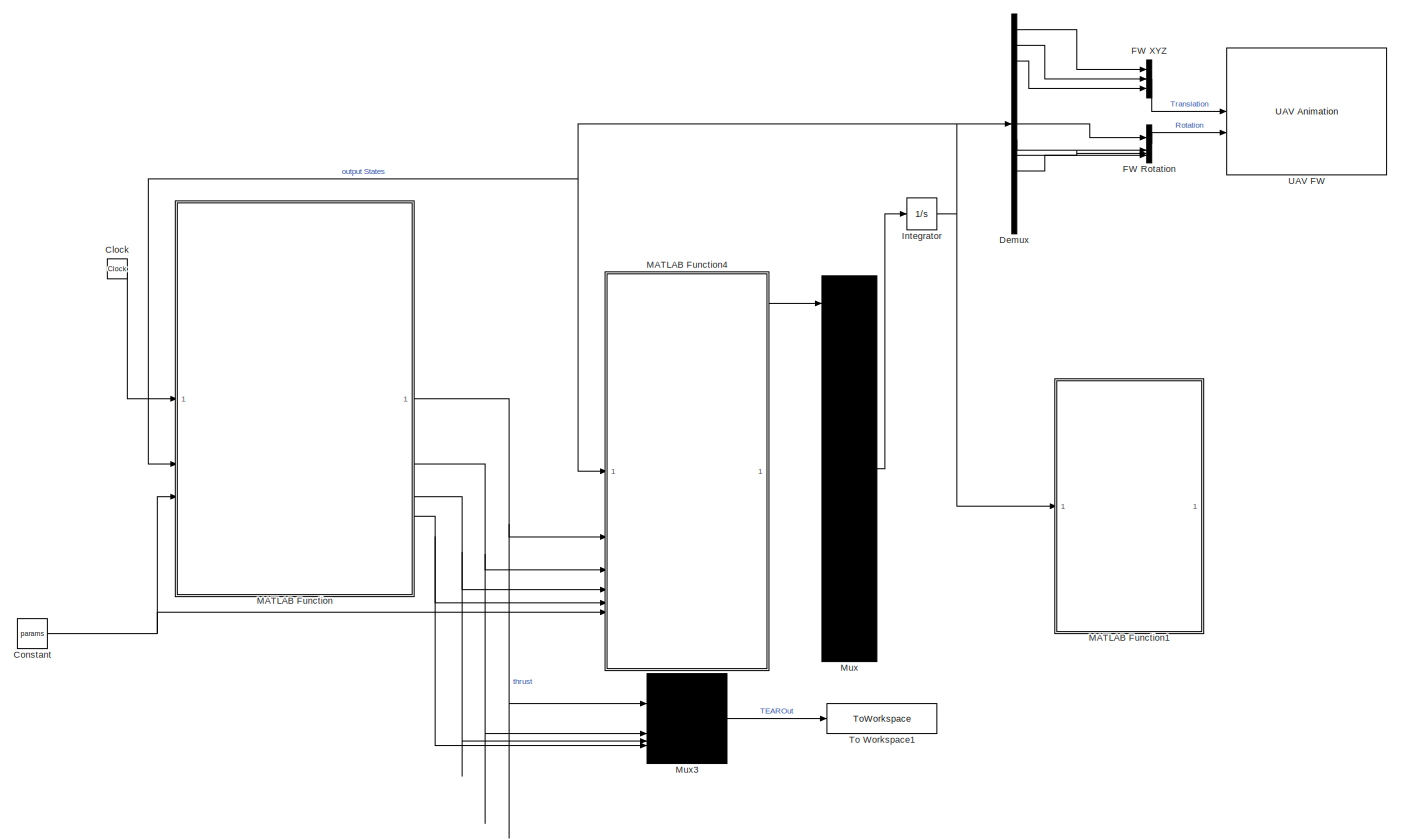
[diagram: root canvas - part 1/1, most of the canvas]
MODEL slx_4d171bb0af04
KIND model
CONFIG AbsTol = auto
CONFIG EnableMultiTasking = off
CONFIG FixedStep = 0.001
CONFIG MaxStep = auto
CONFIG MinStep = auto
CONFIG RelTol = 1e-3
CONFIG SampleTimeConstraint = Unconstrained
CONFIG SolverName = ode1
CONFIG StartTime = 0.0
CONFIG StopTime = 20
BLOCK [Clock] Clock
  Decimation = 1
  DisplayTime = on
BLOCK [Constant] Constant
  OutDataTypeStr = Bus: paramsBus
  Value = params
BLOCK [Demux] Demux
  Outputs = 13
BLOCK [Mux] FW Rotation
  DisplayOption = bar
BLOCK [Mux] FW XYZ
  DisplayOption = bar
  Inputs = 3
BLOCK [Integrator] Integrator
  InitialCondition = initial_fw_state
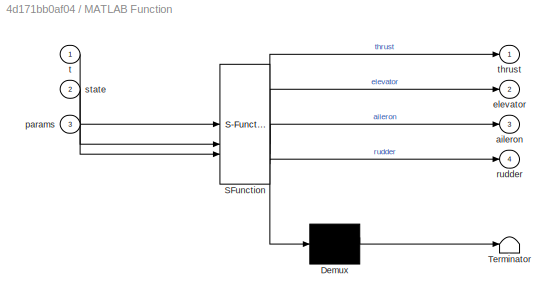
BLOCK [SubSystem] MATLAB Function
  ErrorFcn = Stateflow.Translate.translate
  PermitHierarchicalResolution = ExplicitOnly
  SFBlockType = MATLAB Function
  TreatAsAtomicUnit = on
BLOCK [Demux] MATLAB Function/ Demux 
  Outputs = 1
BLOCK [S-Function] MATLAB Function/ SFunction 
  EnableBusSupport = on
  FunctionName = sf_sfun
  PortCounts = [3 5]
  SFcnIsStateOwnerBlock = off
  SFunctionDeploymentMode = off
  Tag = Stateflow S-Function 7
BLOCK [Terminator] MATLAB Function/ Terminator 
BLOCK [Outport] MATLAB Function/aileron
  Port = 3
BLOCK [Outport] MATLAB Function/elevator
  Port = 2
BLOCK [Inport] MATLAB Function/params
  Port = 3
BLOCK [Outport] MATLAB Function/rudder
  Port = 4
BLOCK [Inport] MATLAB Function/state
  Port = 2
BLOCK [Inport] MATLAB Function/t
BLOCK [Outport] MATLAB Function/thrust
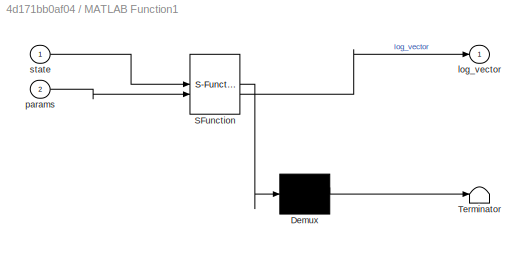
BLOCK [SubSystem] MATLAB Function1
  Commented = on
  ErrorFcn = Stateflow.Translate.translate
  PermitHierarchicalResolution = ExplicitOnly
  SFBlockType = MATLAB Function
  TreatAsAtomicUnit = on
BLOCK [Demux] MATLAB Function1/ Demux 
  Outputs = 1
BLOCK [S-Function] MATLAB Function1/ SFunction 
  EnableBusSupport = on
  FunctionName = sf_sfun
  PortCounts = [2 2]
  SFcnIsStateOwnerBlock = off
  SFunctionDeploymentMode = off
  Tag = Stateflow S-Function 1
BLOCK [Terminator] MATLAB Function1/ Terminator 
BLOCK [Outport] MATLAB Function1/log_vector
BLOCK [Inport] MATLAB Function1/params
  Port = 2
BLOCK [Inport] MATLAB Function1/state
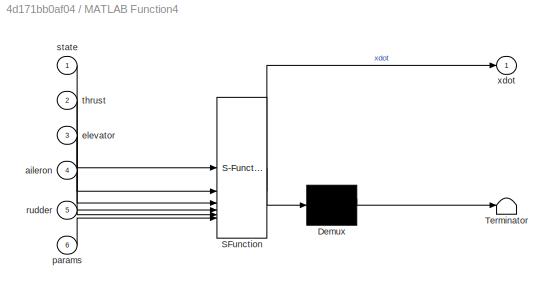
BLOCK [SubSystem] MATLAB Function4
  ErrorFcn = Stateflow.Translate.translate
  PermitHierarchicalResolution = ExplicitOnly
  SFBlockType = MATLAB Function
  TreatAsAtomicUnit = on
BLOCK [Demux] MATLAB Function4/ Demux 
  Outputs = 1
BLOCK [S-Function] MATLAB Function4/ SFunction 
  EnableBusSupport = on
  FunctionName = sf_sfun
  PortCounts = [6 2]
  SFcnIsStateOwnerBlock = off
  SFunctionDeploymentMode = off
  Tag = Stateflow S-Function 6
BLOCK [Terminator] MATLAB Function4/ Terminator 
BLOCK [Inport] MATLAB Function4/aileron
  Port = 4
BLOCK [Inport] MATLAB Function4/elevator
  Port = 3
BLOCK [Inport] MATLAB Function4/params
  Port = 6
BLOCK [Inport] MATLAB Function4/rudder
  Port = 5
BLOCK [Inport] MATLAB Function4/state
BLOCK [Inport] MATLAB Function4/thrust
  Port = 2
BLOCK [Outport] MATLAB Function4/xdot
BLOCK [Mux] Mux
  DisplayOption = signals
  Inputs = 13
BLOCK [Mux] Mux3
  DisplayOption = signals
BLOCK [ToWorkspace] To Workspace1
  FixptAsFi = on
  MaxDataPoints = inf
  SampleTime = -1
  Save2DSignal = 2-D array (concatenate along first dimension)
  SaveFormat = Structure With Time
  VariableName = fixedWingDataTEAR
BLOCK [Reference] UAV FW  REF=uavutilslib/UAV Animation
  SourceBlock = uavutilslib/UAV Animation
  SourceType = uav.sluav.internal.system.UAVAnimation
LINE Clock:1 -> MATLAB Function:1
NET Constant:1 -> MATLAB Function4:6, MATLAB Function:3
LINE Demux:1 -> FW XYZ:1
LINE Demux:10 -> FW Rotation:4
LINE Demux:2 -> FW XYZ:2
LINE Demux:3 -> FW XYZ:3
LINE Demux:7 -> FW Rotation:1
LINE Demux:8 -> FW Rotation:2
LINE Demux:9 -> FW Rotation:3
LINE FW Rotation:1 -> UAV FW:2
LINE FW XYZ:1 -> UAV FW:1
NET Integrator:1 -> Demux:1, MATLAB Function1:1, MATLAB Function4:1, MATLAB Function:2
LINE MATLAB Function4:1 -> Mux:1
NET MATLAB Function:1 -> MATLAB Function4:2, Mux3:1
NET MATLAB Function:2 -> MATLAB Function4:3, Mux3:2
NET MATLAB Function:3 -> MATLAB Function4:4, Mux3:3
NET MATLAB Function:4 -> MATLAB Function4:5, Mux3:4
LINE Mux3:1 -> To Workspace1:1
LINE Mux:1 -> Integrator:1
note: NET lines group one-source signal fan-out (src -> all destinations, sorted); 1:1 wires keep LINE
CHART MATLAB Function1 states=1 transitions=1
  STATE_LABEL 'eML_blk_kernel()'
  STATE_LABEL 'SCRIPT:\nfunction log_vector = fw_log_diagnostics(state, params)\n% Logs diagnostics from aircraft state for debugging purposes\n\n% === Unpack State ===\nu = state(4); v = state(5); w = state(6);\nphi = state(7); theta = state(8); psi = state(9);\n\n% === Aircraft Constants (Fixed-Wing Specific with Prefixes) ===\nrho = params.rho;\nS   = params.fw_S;\nCL0 = params.fw_CL0;\nCL_alpha = params.fw_CL_alpha;\nCD0...<+575ch>'
CHART MATLAB Function4 states=1 transitions=1
  STATE_LABEL 'eML_blk_kernel()'
  STATE_LABEL "SCRIPT:\nfunction xdot = fw_6dof_quat(state, thrust, elevator, aileron, rudder, params)\n% FW_6DOF_QUAT  Rigid-body 6-DoF fixed-wing with wind-axis aero\n%\n% State (13x1): [x y z u v w q0 q1 q2 q3 p q r]'\n%   x,y,z   : position in NED (m)  (Z down)\n%   u,v,w   : body translational velocities (m/s)  (inertial-relative)\n%   q0..q3  : quaternion q_BN (N->Body), scalar-first (Hamilton)\n%   p,q,r   : body...<+3608ch>"
CHART MATLAB Function states=1 transitions=1
  STATE_LABEL 'eML_blk_kernel()'
  STATE_LABEL 'SCRIPT:\nfunction [thrust, elevator, aileron, rudder] = fw_controller_block(t, state, params)\n% Scripted maneuver controller for dynamic model validation\n% Inputs:\n%   t      : simulation time [s]\n%   state  : 13x1 state vector [x y z u v w q0 q1 q2 q3 p q r]\n%   params : parameter struct (must include .min_thrust, .max_thrust)\n\n% ==== Trim and Control Gains ====\ntarget_speed   = 6.0;       % m/s\nt...<+1484ch>'
CHART  states=0 transitions=0
CHART  states=0 transitions=0
CHART  states=0 transitions=0
